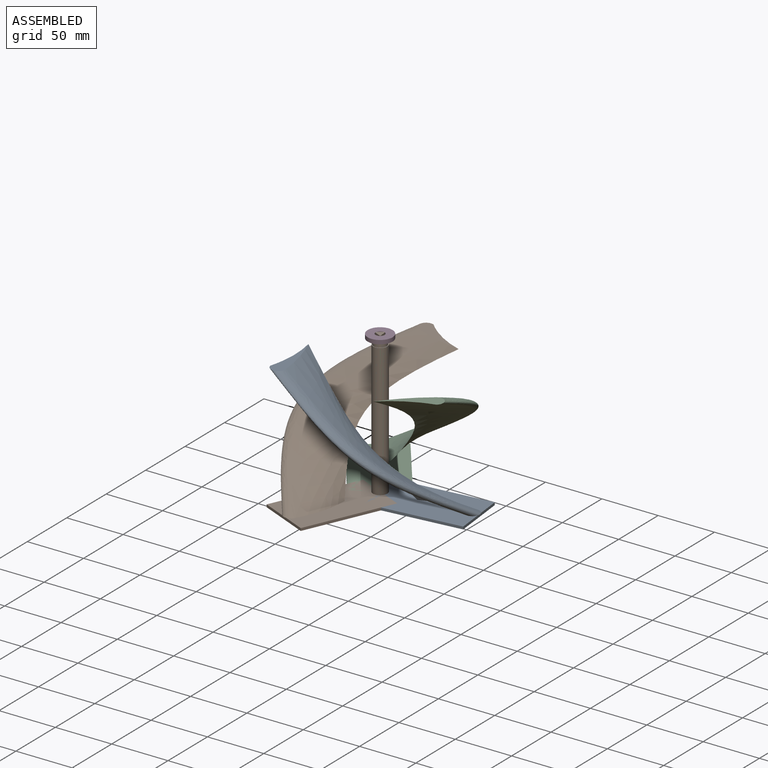
[diagram: assembled view]
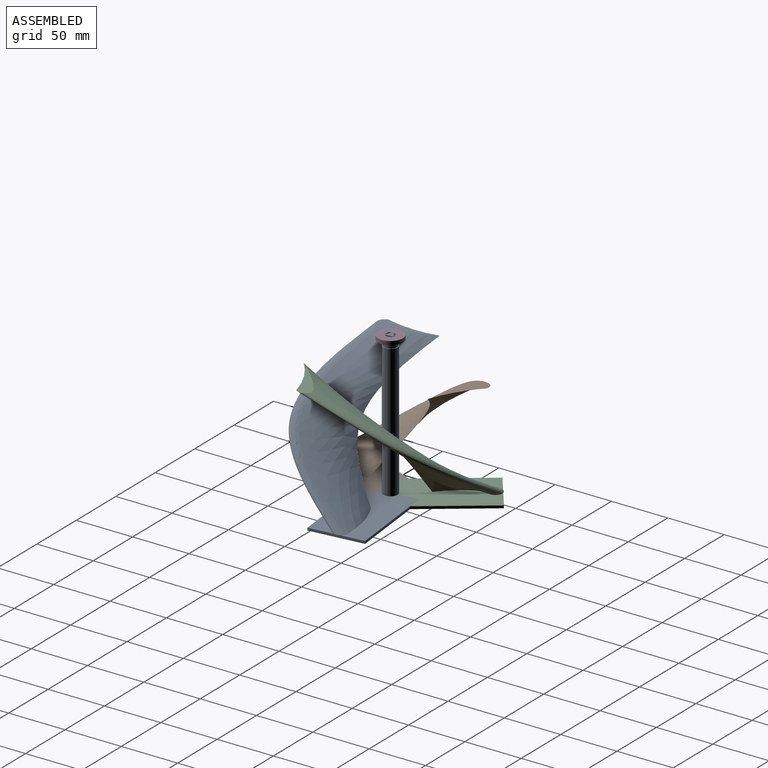
[diagram: assembled view, second angle]
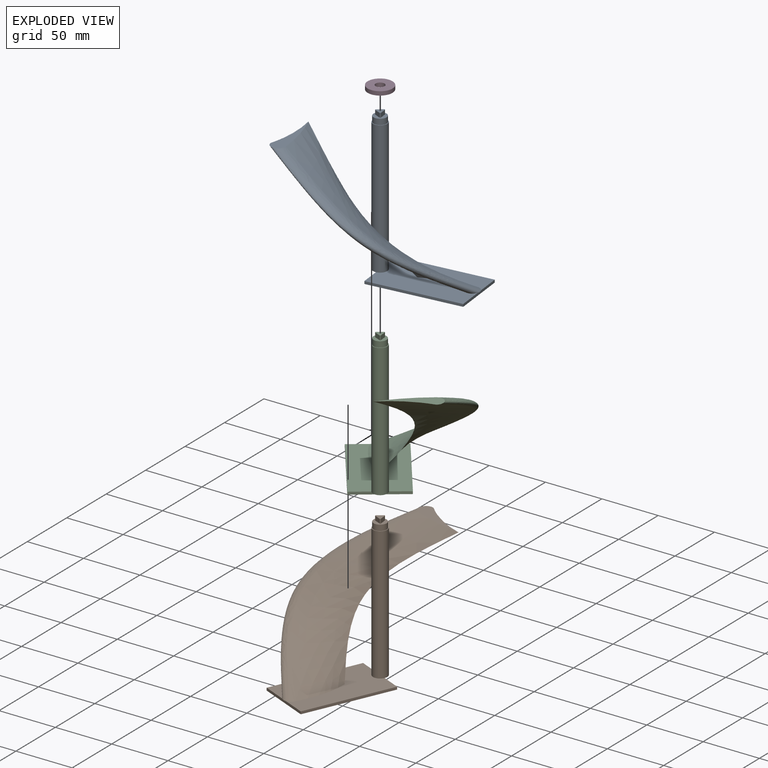
[diagram: exploded view]
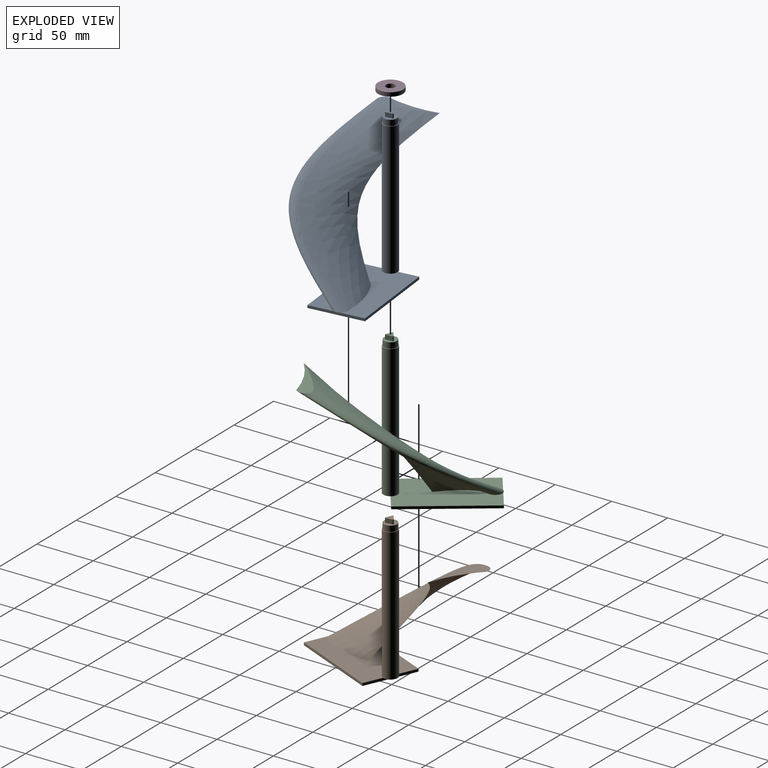
[diagram: exploded view, second angle]
ASSEMBLY  parts=4 mates=3
PART A: 25 faces, bbox 116.1x151.9x129.3 mm
  f0: plane 23.11x2.29mm, normal (0,1,0), area 52.8mm2, adj f1,f11,f12,f14,f24
  f1: plane 82.01x47.75mm, normal (0,0,-1), area 3914.8mm2, adj f0,f13,f14,f15,f16,f24
  f2: cylinder r=3.99mm len=3.81mm, axis (0,0,1), area 2.9mm2, adj f19,f20,f21,f23
  f3: cylinder r=3.99mm len=3.81mm, axis (0,0,1), area 2.9mm2, adj f19,f20,f22,f23
  f4: cylinder r=3.99mm len=3.81mm, axis (0,0,1), area 2.9mm2, adj f19,f20,f21,f22
  f5: cylinder r=6.35mm len=118.11mm, axis (0,0,-1), area 4712.4mm2, adj f11,f12,f17
  f6: plane 5.12x0.54mm, normal (0,0,-1), area 1.9mm2, adj f8,f15
  f7: plane 52.07x12.74mm, normal (0,0,1), area 318.7mm2, adj f8,f9,f10
  f8: bspline ~151.85x101.6mm, area 3439.9mm2, adj f6,f7,f9,f10,f12
  f9: bspline ~139.15x101.6mm, area 7167.7mm2, adj f7,f8,f10,f12
  f10: bspline ~139.17x101.6mm, area 7495.9mm2, adj f7,f8,f9,f12
  f11: plane 12.7x7.11mm, normal (0,0,-1), area 64.3mm2, adj f0,f5,f13,f24
  f12: plane 82.02x47.75mm, normal (0,0,1), area 3589.1mm2, adj f0,f5,f8,f9,f10,f13,f14,f15
  f13: plane 23.11x2.29mm, normal (0,1,0), area 52.8mm2, adj f1,f11,f12,f16,f24
  f14: plane 82.01x2.29mm, normal (-1,0,0), area 187.5mm2, adj f0,f1,f12,f15
  f15: plane 47.75x2.29mm, normal (0,-1,0), area 109.1mm2, adj f1,f6,f12,f14,f16
  f16: plane 82.01x2.29mm, normal (1,0,0), area 187.5mm2, adj f1,f12,f13,f15
  f17: plane 12.7x12.7mm, normal (0,0,1), area 22.2mm2, adj f5,f18
  f18: cylinder r=5.77mm len=11.53mm, axis (0,0,1), area 184mm2, adj f17,f20
  f19: plane 7.26x6.3mm, normal (0,0,1), area 27.1mm2, adj f2,f3,f4,f21,f22,f23
  f20: plane 11.53x11.53mm, normal (0,0,1), area 77.3mm2, adj f2,f3,f4,f18,f21,f22,f23
  f21: plane 5.62x3.81mm, normal (0.87,0.5,0), area 24.7mm2, adj f2,f4,f19,f20
  f22: plane 5.62x3.81mm, normal (-0.87,0.5,0), area 24.7mm2, adj f3,f4,f19,f20
  f23: plane 6.49x3.81mm, normal (0,-1,0), area 24.7mm2, adj f2,f3,f19,f20
  f24: cylinder r=0.76mm len=2.29mm, axis (0,0,-1), area 5.5mm2, adj f0,f1,f11,f13
PART B: same geometry as A
PART C: same geometry as A
PART D: 4 faces, bbox 22x22x3.5 mm
  f0: cylinder r=3.99mm len=7.98mm, axis (0,0,-1), area 87.8mm2, adj f2,f3
  f1: cylinder r=11.01mm len=22.02mm, axis (0,0,-1), area 242.5mm2, adj f2,f3
  f2: plane 22.02x22.02mm, normal (0,0,1), area 330.9mm2, adj f0,f1
  f3: plane 22.02x22.02mm, normal (0,0,-1), area 330.9mm2, adj f0,f1
PLACE A rot(axis=(0,0,1),96.3deg) t=(-50.66,48.47,1.02)mm
PLACE B rot(axis=(0,0,-1),23.7deg) t=(-50.66,48.47,1.02)mm
PLACE C rot(axis=(0,0,-1),143.7deg) t=(-50.66,48.47,1.02)mm
PLACE D rot(axis=(0,0,1),36.3deg) t=(-50.66,48.47,124.21)mm
MATE planar C.f1 <-> A.f1  axis (0,0,-1) through (-74.91,81.54,-1.27)mm
MATE planar C.f1 <-> B.f1  axis (0,0,-1) through (-74.91,81.54,-1.27)mm
MATE cylindrical D.f0 <-> C.f18  axis (0,0,-1) through (-50.66,48.47,124.21)mm
